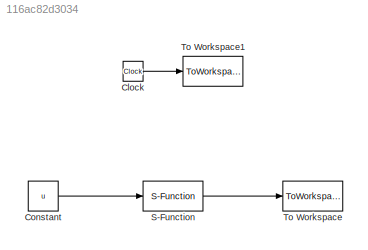
MODEL slx_116ac82d3034
KIND model
BLOCK [Clock] Clock
BLOCK [Constant] Constant
  Value = u
BLOCK [S-Function] S-Function
  EnableBusSupport = off
  FunctionName = mdl2s
  Parameters = y0
  Ports = [1, 1]
BLOCK [ToWorkspace] To Workspace
  MaxDataPoints = inf
  Ports = [1]
  SampleTime = -1
  VariableName = y2
BLOCK [ToWorkspace] To Workspace1
  MaxDataPoints = inf
  Ports = [1]
  SampleTime = -1
  VariableName = t2
LINE Clock:1 -> To Workspace1:1
LINE Constant:1 -> S-Function:1
LINE S-Function:1 -> To Workspace:1
